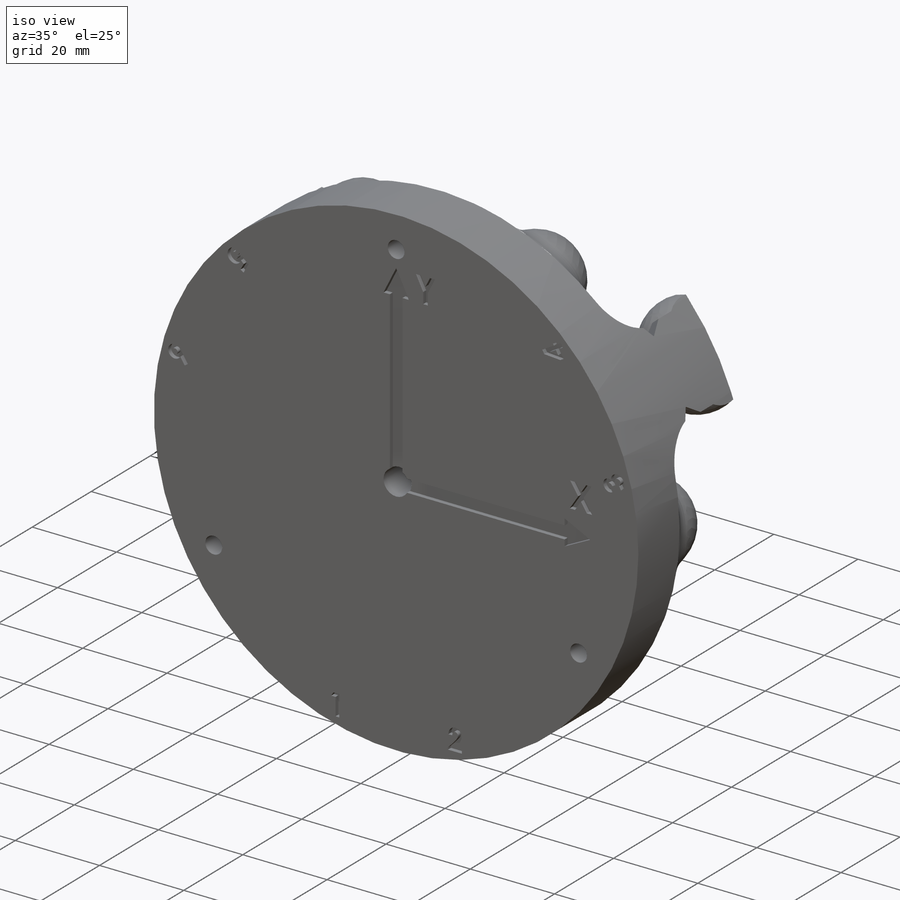
[diagram: iso view]
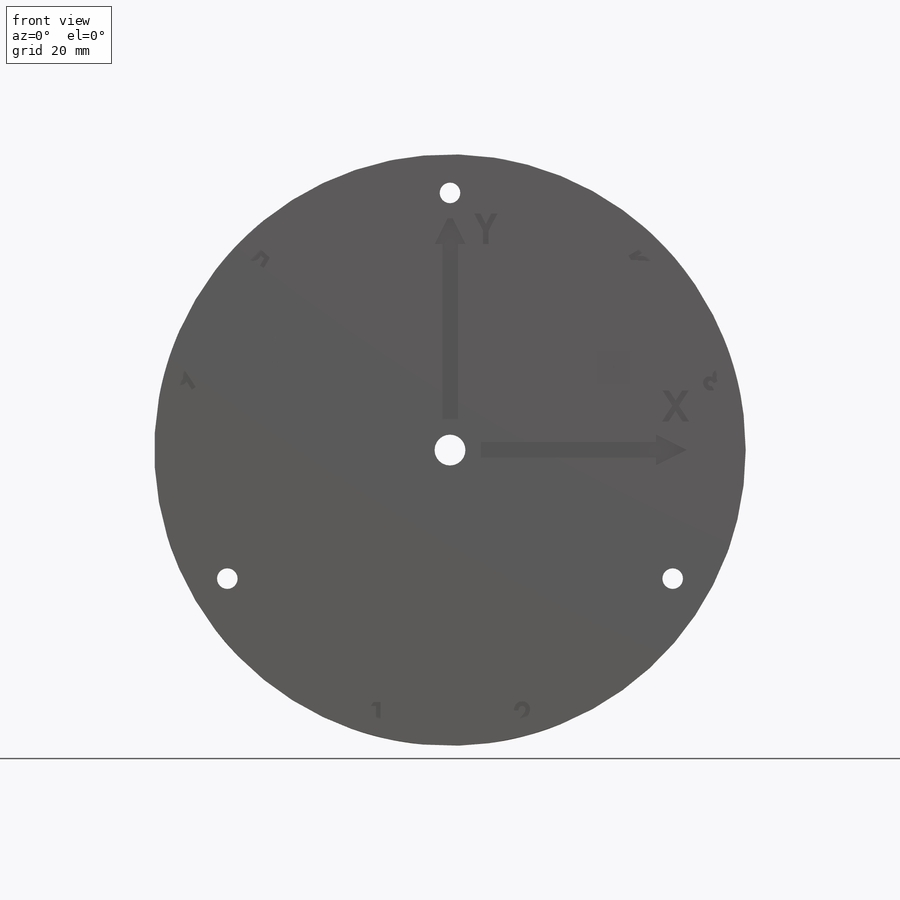
[diagram: front view]
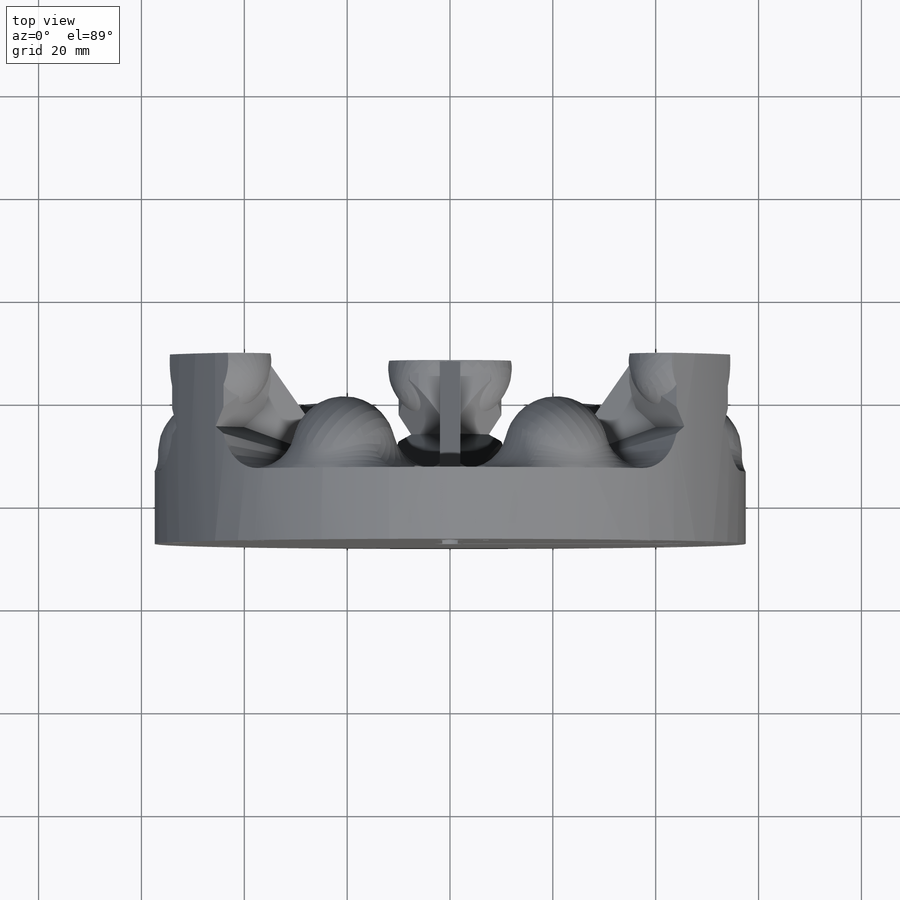
[diagram: top view]
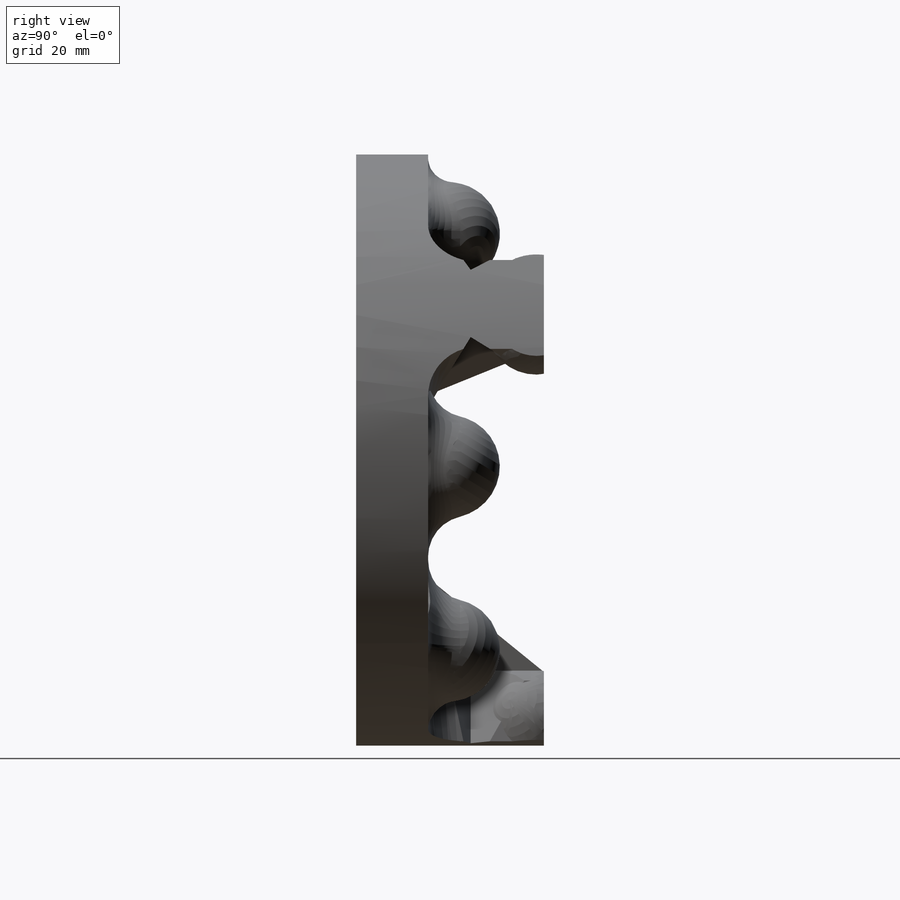
[diagram: right view]
SOLIDWORKS PART (.sldprt)
format: sldprt  version: not decoded by parser v0  size: 1,371,648 bytes
history: native  units: mm
features: sketch x10, cut_extrude x8, plane x4, extrude x2, pattern_circular x2, material x1, mirror x1 (+9 scaffold rows collapsed)
feature tree (37):
  scaffold x9  (default folders/planes/origin — collapsed)
  material  "Matériau <non spécifié>"
  plane  "Plan de face"
  plane  "Plan de dessus"
  plane  "Plan de droite"
  plane  "Plan1"
  sketch  "Esquisse2"
  extrude  "Boss.-Extru.1"  Depth=12mm
  sketch  "Esquisse10"  dims[D2=100.0mm D3=4.0mm D1=3.0]
  cut_extrude  "Enlèv. mat.-Extru.6"  [1 undecoded]
  sketch  "Esquisse11"  dims[D1=5.0mm D2=5.0mm D3=5.0mm]
  cut_extrude  "Enlèv. mat.-Extru.7"  Depth=10mm
  sketch  "Esquisse16"  dims[D1=16.0mm D2=3.0]
  cut_extrude  "Enlèv. mat.-Extru.12"  Depth=1mm
  sketch  "Esquisse12"  dims[D1=6.0mm]
  sketch  "Esquisse13"  dims[c1.D6=16.0mm c1.D1=3.0mm c1.D2=6.0mm c1.D3=6.0mm c1.D4=40.0mm c2.D1=3.0mm c2.D2=6.0mm c3.D2=~53.130102deg c3.D3=6.0mm c3.D4=46.0mm c4.D2=6.0mm c4.D4=46.0mm c4.D5=2.0]
  cut_extrude  "Enlèv. mat.-Extru.13"  Depth=1mm
  sketch  "Esquisse19"
  cut_extrude  "Enlèv. mat.-Extru.16"  Depth=1mm
  cut_extrude  "Enlèv. mat.-Extru.14"  [1 undecoded]
  sketch  "Esquisse17"  dims[D1=80.0mm]
  extrude  "Boss.-Extru.2"  Depth=12mm
  sketch  "Esquisse18"  dims[D2=19.3mm D1=1.6mm]
  cut_extrude  "Enlèv. mat.-Extru.15"  [1 undecoded]
  mirror  "Symétrie1"
  pattern_circular  "Répétition circulaire1"  Count=3 Angle=360deg
  pattern_circular  "Empreinte2"  [2 undecoded]
  sketch  "Esquisse20"  dims[D1=0.2mm]
  cut_extrude  "Enlèv. mat.-Extru.17"  Depth=5mm
decode coverage: 16 of 23 modeling features carry decoded parameters
note: ~ marks probable driven/reference dimensions
note: 5 parameter values undecoded
summary: no parameter record found for 3 features
note: suppression state not decoded; provenance and decode notes live in map.json
